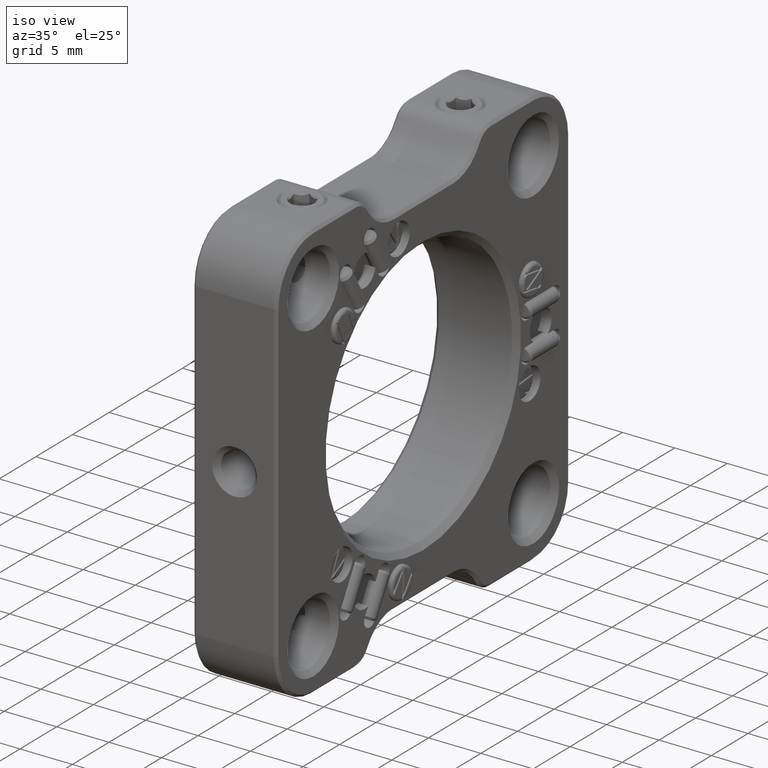
[diagram: clean part render]
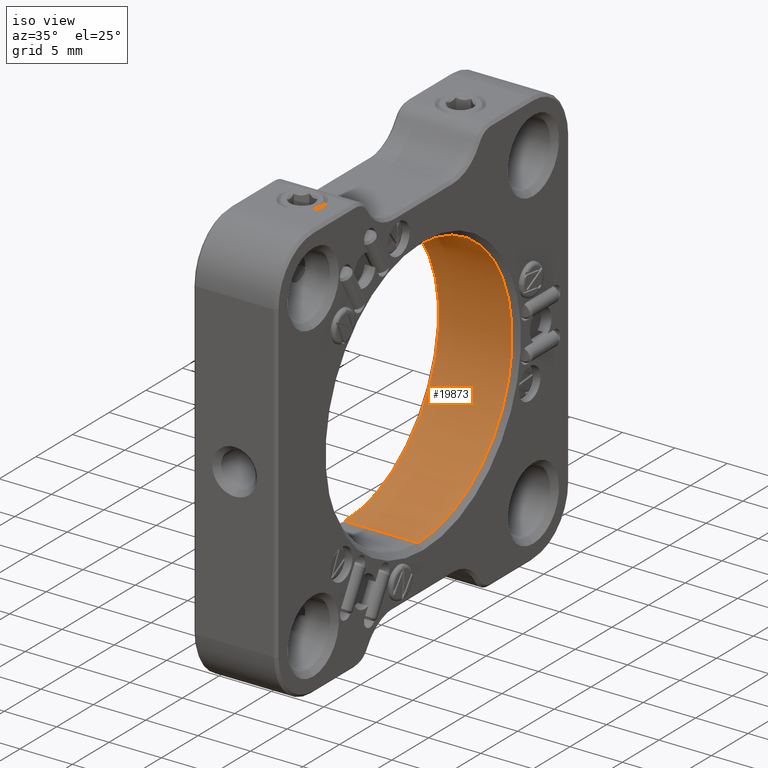
[diagram: same view with one face highlighted and labeled with its STEP entity id]
A machine part, iso view. The second image highlights one B-rep face of the part: STEP entity #19873.
In plain terms, the highlighted cylindrical surface (partial cylindrical patch) has radius 12.827 mm, axis along (1, -0, -0).
Its self-contained STEP definition (entity closure, byte-faithful):
#373 = EDGE_CURVE ( 'NONE', #15848, #12049, #9874, .T. ) ;
#828 = CARTESIAN_POINT ( 'NONE',  ( -3.500000000000001332, 1.570854449266309722E-15, 12.82699999999999818 ) ) ;
#2072 = ORIENTED_EDGE ( 'NONE', *, *, #19042, .F. ) ;
#5057 = CARTESIAN_POINT ( 'NONE',  ( -3.500000000000001332, 0.000000000000000000, -12.82699999999999818 ) ) ;
#5447 = CARTESIAN_POINT ( 'NONE',  ( -3.500000000000001332, 0.000000000000000000, 0.000000000000000000 ) ) ;
#5451 = EDGE_LOOP ( 'NONE', ( #2072, #6291, #12824, #12045 ) ) ;
#5879 = DIRECTION ( 'NONE',  ( 1.000000000000000000, 0.000000000000000000, 0.000000000000000000 ) ) ;
#6254 = EDGE_CURVE ( 'NONE', #9885, #15848, #6710, .T. ) ;
#6261 = VERTEX_POINT ( 'NONE', #828 ) ;
#6291 = ORIENTED_EDGE ( 'NONE', *, *, #13654, .T. ) ;
#6458 = CARTESIAN_POINT ( 'NONE',  ( -4.000000000000000000, 0.000000000000000000, -12.82699999999999818 ) ) ;
#6662 = FACE_OUTER_BOUND ( 'NONE', #5451, .T. ) ;
#6710 = LINE ( 'NONE', #6458, #11072 ) ;
#7589 = CARTESIAN_POINT ( 'NONE',  ( 3.499999999999989342, 0.000000000000000000, 0.000000000000000000 ) ) ;
#7651 = CYLINDRICAL_SURFACE ( 'NONE', #15582, 12.82699999999999818 ) ;
#7691 = CARTESIAN_POINT ( 'NONE',  ( -4.000000000000000000, 0.000000000000000000, 0.000000000000000000 ) ) ;
#7884 = DIRECTION ( 'NONE',  ( 0.000000000000000000, 0.000000000000000000, -1.000000000000000000 ) ) ;
#9004 = DIRECTION ( 'NONE',  ( 1.000000000000000000, -0.000000000000000000, -0.000000000000000000 ) ) ;
#9481 = DIRECTION ( 'NONE',  ( 1.000000000000000000, -0.000000000000000000, -0.000000000000000000 ) ) ;
#9874 = CIRCLE ( 'NONE', #14258, 12.82699999999999818 ) ;
#9885 = VERTEX_POINT ( 'NONE', #5057 ) ;
#10728 = DIRECTION ( 'NONE',  ( 1.000000000000000000, -0.000000000000000000, -0.000000000000000000 ) ) ;
#11072 = VECTOR ( 'NONE', #9481, 1000.000000000000000 ) ;
#12045 = ORIENTED_EDGE ( 'NONE', *, *, #373, .T. ) ;
#12049 = VERTEX_POINT ( 'NONE', #13178 ) ;
#12824 = ORIENTED_EDGE ( 'NONE', *, *, #6254, .T. ) ;
#13178 = CARTESIAN_POINT ( 'NONE',  ( 3.499999999999989342, 1.601470619244994495E-15, 12.82699999999999818 ) ) ;
#13329 = VECTOR ( 'NONE', #10728, 1000.000000000000000 ) ;
#13583 = CARTESIAN_POINT ( 'NONE',  ( 3.499999999999989342, 0.000000000000000000, -12.82699999999999818 ) ) ;
#13654 = EDGE_CURVE ( 'NONE', #6261, #9885, #14873, .T. ) ;
#13711 = DIRECTION ( 'NONE',  ( 0.000000000000000000, 0.000000000000000000, -1.000000000000000000 ) ) ;
#14258 = AXIS2_PLACEMENT_3D ( 'NONE', #7589, #5879, #13711 ) ;
#14841 = AXIS2_PLACEMENT_3D ( 'NONE', #5447, #16343, #14897 ) ;
#14873 = CIRCLE ( 'NONE', #14841, 12.82699999999999818 ) ;
#14897 = DIRECTION ( 'NONE',  ( 0.000000000000000000, 0.000000000000000000, -1.000000000000000000 ) ) ;
#15553 = CARTESIAN_POINT ( 'NONE',  ( -4.000000000000000000, 1.570854449266309722E-15, 12.82699999999999818 ) ) ;
#15582 = AXIS2_PLACEMENT_3D ( 'NONE', #7691, #9004, #7884 ) ;
#15848 = VERTEX_POINT ( 'NONE', #13583 ) ;
#16343 = DIRECTION ( 'NONE',  ( -1.000000000000000000, -0.000000000000000000, -0.000000000000000000 ) ) ;
#19042 = EDGE_CURVE ( 'NONE', #6261, #12049, #19368, .T. ) ;
#19368 = LINE ( 'NONE', #15553, #13329 ) ;
#19873 = ADVANCED_FACE ( 'NONE', ( #6662 ), #7651, .F. ) ;